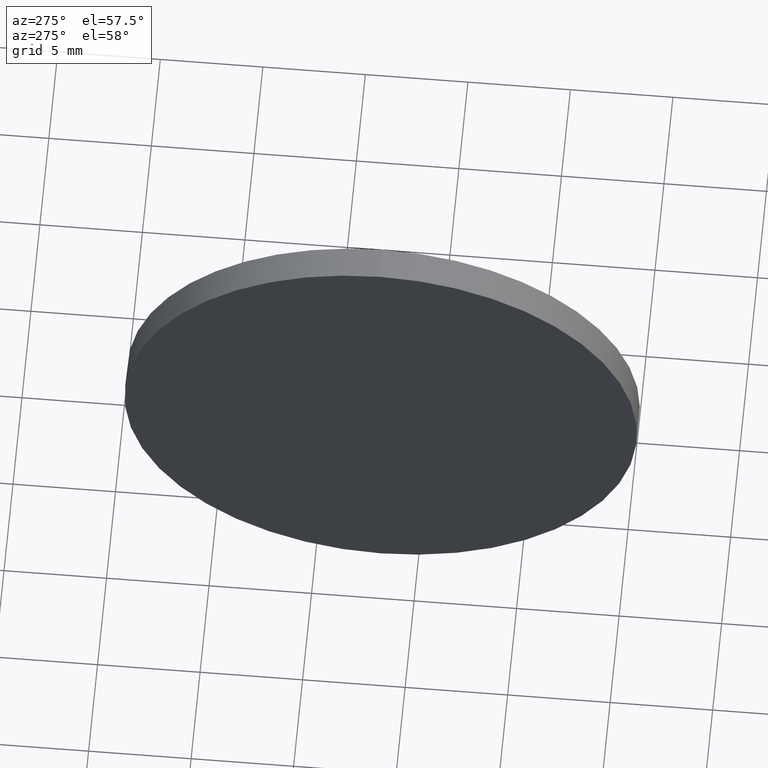
[diagram: clean part render]
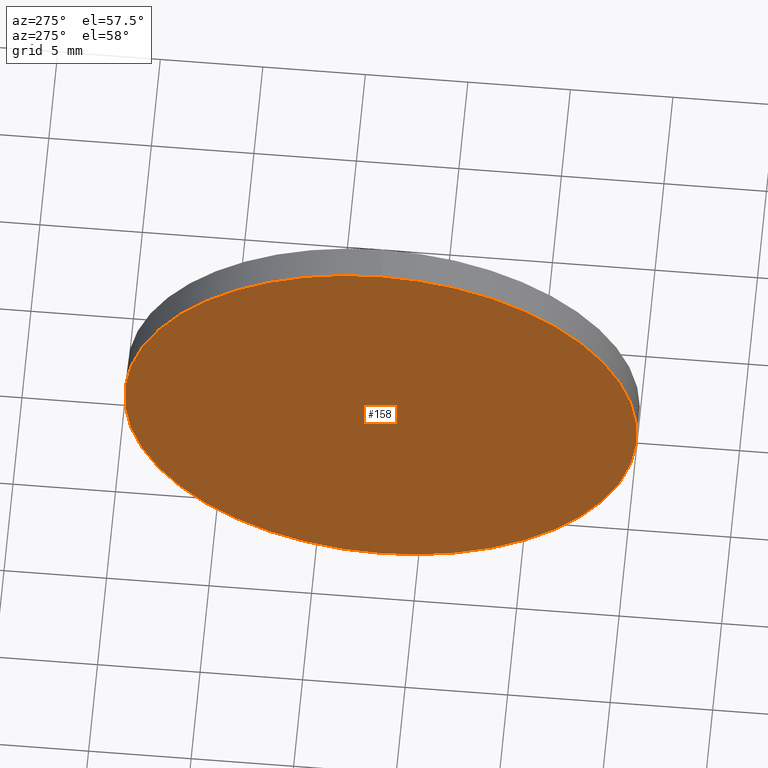
[diagram: same view with one face highlighted and labeled with its STEP entity id]
A machine part, auxiliary view. The second image highlights one B-rep face of the part: STEP entity #158.
In plain terms, the highlighted planar face has unit normal (1, 0, 0).
Its self-contained STEP definition (entity closure, byte-faithful):
#12 = CARTESIAN_POINT ( 'NONE',  ( 657.2484244515591200, 181.8210075417636100, 0.0000000000000000000 ) ) ;
#15 = CARTESIAN_POINT ( 'NONE',  ( 657.2484244515591200, 181.8210075417636100, -12.50000000000001100 ) ) ;
#26 = ORIENTED_EDGE ( 'NONE', *, *, #117, .T. ) ;
#28 = DIRECTION ( 'NONE',  ( 1.000000000000000000, 0.0000000000000000000, 0.0000000000000000000 ) ) ;
#29 = CARTESIAN_POINT ( 'NONE',  ( 657.2484244515591200, 181.8210075417636100, 12.50000000000001100 ) ) ;
#37 = DIRECTION ( 'NONE',  ( 0.0000000000000000000, 0.0000000000000000000, 1.000000000000000000 ) ) ;
#42 = EDGE_CURVE ( 'NONE', #140, #114, #178, .T. ) ;
#47 = AXIS2_PLACEMENT_3D ( 'NONE', #168, #125, #96 ) ;
#50 = AXIS2_PLACEMENT_3D ( 'NONE', #12, #28, #54 ) ;
#54 = DIRECTION ( 'NONE',  ( 0.0000000000000000000, 0.0000000000000000000, -1.000000000000000000 ) ) ;
#59 = ORIENTED_EDGE ( 'NONE', *, *, #42, .T. ) ;
#65 = PLANE ( 'NONE',  #50 ) ;
#92 = CIRCLE ( 'NONE', #47, 12.50000000000001100 ) ;
#96 = DIRECTION ( 'NONE',  ( 0.0000000000000000000, 0.0000000000000000000, 1.000000000000000000 ) ) ;
#111 = AXIS2_PLACEMENT_3D ( 'NONE', #164, #177, #37 ) ;
#114 = VERTEX_POINT ( 'NONE', #15 ) ;
#117 = EDGE_CURVE ( 'NONE', #114, #140, #92, .T. ) ;
#124 = FACE_OUTER_BOUND ( 'NONE', #180, .T. ) ;
#125 = DIRECTION ( 'NONE',  ( -1.000000000000000000, -0.0000000000000000000, -0.0000000000000000000 ) ) ;
#140 = VERTEX_POINT ( 'NONE', #29 ) ;
#158 = ADVANCED_FACE ( 'NONE', ( #124 ), #65, .F. ) ;
#164 = CARTESIAN_POINT ( 'NONE',  ( 657.2484244515591200, 181.8210075417636100, 0.0000000000000000000 ) ) ;
#168 = CARTESIAN_POINT ( 'NONE',  ( 657.2484244515591200, 181.8210075417636100, 0.0000000000000000000 ) ) ;
#177 = DIRECTION ( 'NONE',  ( -1.000000000000000000, -0.0000000000000000000, -0.0000000000000000000 ) ) ;
#178 = CIRCLE ( 'NONE', #111, 12.50000000000001100 ) ;
#180 = EDGE_LOOP ( 'NONE', ( #59, #26 ) ) ;